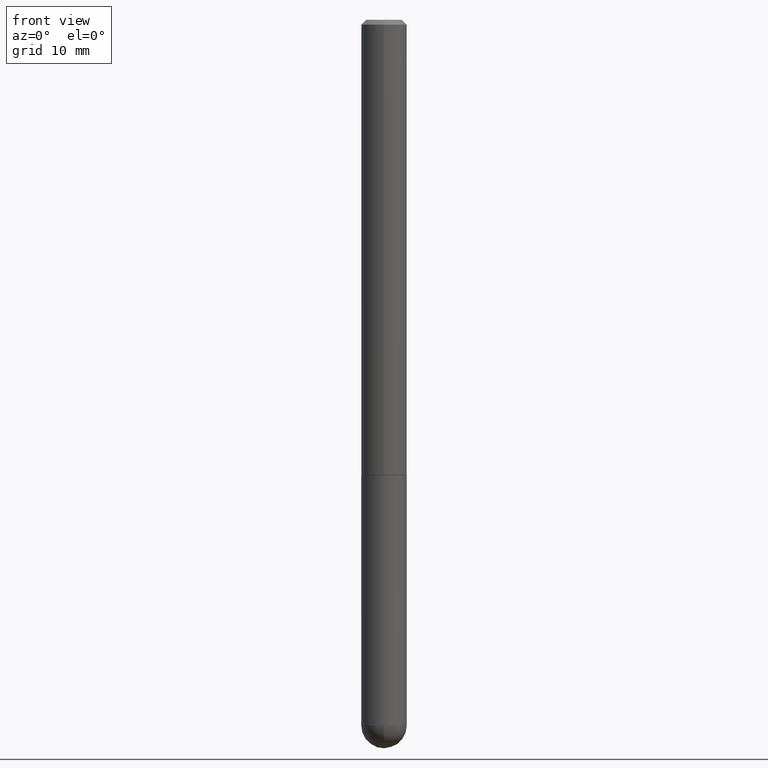
[diagram: clean part render]
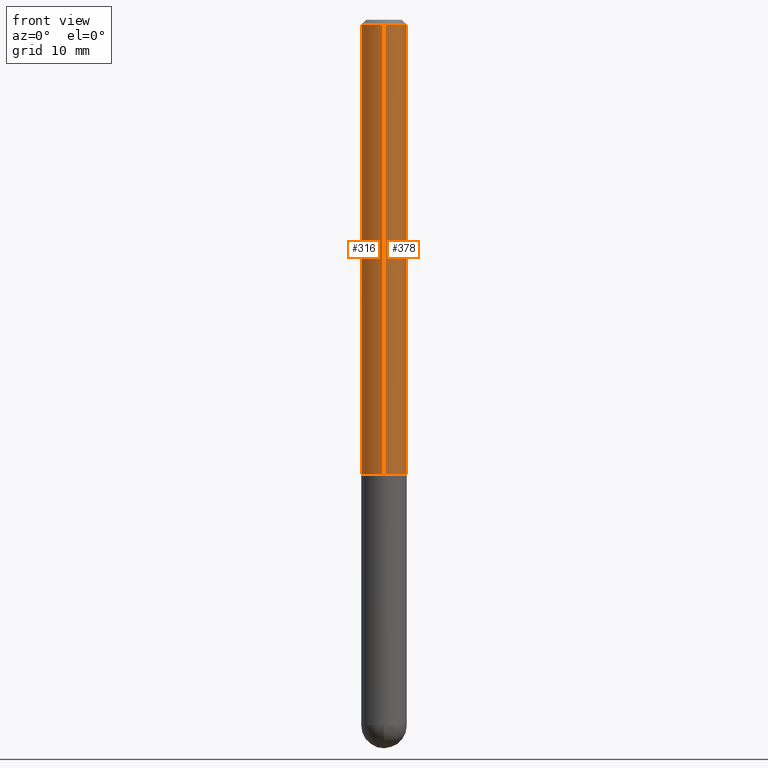
[diagram: same view with one multi-face feature highlighted, each face labeled with its STEP entity id]
A machine part, front view. The highlighted faces form ONE feature: a constant-radius fillet chain: 2 tangent blend faces with common blend radius 2.3813 mm. The faces share edges in the B-rep.
Their STEP definitions:
[1] entity #316 (Cylinder):
#18 = CIRCLE ( 'NONE', #53, 0.09375000000000024980 ) ;
#38 = AXIS2_PLACEMENT_3D ( 'NONE', #71, #390, #43 ) ;
#39 = CARTESIAN_POINT ( 'NONE',  ( 4.581812721801287478E-29, -6.544462101327855902E-15, -1.874000000000000110 ) ) ;
#43 = DIRECTION ( 'NONE',  ( -6.982962677686266711E-15, -1.000000000000000000, 3.505871591869136121E-15 ) ) ;
#49 = DIRECTION ( 'NONE',  ( -2.444937418250420594E-29, 3.492242316610381935E-15, 1.000000000000000000 ) ) ;
#50 = CARTESIAN_POINT ( 'NONE',  ( 6.661338147750948117E-16, 0.09375000000000013878, -3.273977171822237748E-16 ) ) ;
#51 = VECTOR ( 'NONE', #49, 39.37007874015748143 ) ;
#53 = AXIS2_PLACEMENT_3D ( 'NONE', #39, #325, #228 ) ;
#71 = CARTESIAN_POINT ( 'NONE',  ( 4.889874836500844937E-31, -6.984484633220769491E-17, -0.02000000000000001776 ) ) ;
#78 = CARTESIAN_POINT ( 'NONE',  ( 0.000000000000000000, 0.000000000000000000, 0.000000000000000000 ) ) ;
#96 = DIRECTION ( 'NONE',  ( -2.444937418250420594E-29, 3.492242316610381935E-15, 1.000000000000000000 ) ) ;
#111 = EDGE_CURVE ( 'NONE', #259, #388, #113, .T. ) ;
#113 = LINE ( 'NONE', #50, #51 ) ;
#119 = AXIS2_PLACEMENT_3D ( 'NONE', #78, #96, #358 ) ;
#128 = VECTOR ( 'NONE', #361, 39.37007874015748143 ) ;
#133 = CARTESIAN_POINT ( 'NONE',  ( 6.546527510330881944E-16, 0.09374999999999997224, -0.02000000000000034736 ) ) ;
#158 = CARTESIAN_POINT ( 'NONE',  ( 6.661338147751182803E-16, 0.09374999999999368561, -1.874000000000000332 ) ) ;
#167 = EDGE_LOOP ( 'NONE', ( #169, #394, #227, #260 ) ) ;
#169 = ORIENTED_EDGE ( 'NONE', *, *, #111, .F. ) ;
#192 = CYLINDRICAL_SURFACE ( 'NONE', #119, 0.09375000000000013878 ) ;
#227 = ORIENTED_EDGE ( 'NONE', *, *, #404, .T. ) ;
#228 = DIRECTION ( 'NONE',  ( -6.982962677686265133E-15, -1.000000000000000000, 2.913971193241872878E-15 ) ) ;
#235 = CARTESIAN_POINT ( 'NONE',  ( -6.431716872910807882E-16, -0.09375000000000011102, -0.01999999999999968817 ) ) ;
#239 = VERTEX_POINT ( 'NONE', #317 ) ;
#256 = CIRCLE ( 'NONE', #38, 0.09375000000000004163 ) ;
#257 = CARTESIAN_POINT ( 'NONE',  ( -6.546527510330884902E-16, -0.09375000000000013878, 3.273977171822237748E-16 ) ) ;
#259 = VERTEX_POINT ( 'NONE', #158 ) ;
#260 = ORIENTED_EDGE ( 'NONE', *, *, #320, .F. ) ;
#271 = VERTEX_POINT ( 'NONE', #235 ) ;
#312 = EDGE_CURVE ( 'NONE', #259, #239, #18, .T. ) ;
#316 = ADVANCED_FACE ( 'NONE', ( #355 ), #192, .T. ) ;
#317 = CARTESIAN_POINT ( 'NONE',  ( -6.546527510330432293E-16, -0.09375000000000678624, -1.873999999999999666 ) ) ;
#320 = EDGE_CURVE ( 'NONE', #388, #271, #256, .T. ) ;
#323 = LINE ( 'NONE', #257, #128 ) ;
#325 = DIRECTION ( 'NONE',  ( -2.444937418250420594E-29, 3.492242316610381935E-15, 1.000000000000000000 ) ) ;
#355 = FACE_OUTER_BOUND ( 'NONE', #167, .T. ) ;
#358 = DIRECTION ( 'NONE',  ( -6.982962677686266711E-15, -1.000000000000000000, 3.492242316610381935E-15 ) ) ;
#361 = DIRECTION ( 'NONE',  ( -2.444937418250420594E-29, 3.492242316610381935E-15, 1.000000000000000000 ) ) ;
#388 = VERTEX_POINT ( 'NONE', #133 ) ;
#390 = DIRECTION ( 'NONE',  ( -2.444937418250420594E-29, 3.492242316610381935E-15, 1.000000000000000000 ) ) ;
#394 = ORIENTED_EDGE ( 'NONE', *, *, #312, .T. ) ;
#404 = EDGE_CURVE ( 'NONE', #239, #271, #323, .T. ) ;
[2] entity #378 (Cylinder):
#4 = EDGE_LOOP ( 'NONE', ( #359, #80, #20, #229 ) ) ;
#20 = ORIENTED_EDGE ( 'NONE', *, *, #194, .F. ) ;
#34 = DIRECTION ( 'NONE',  ( -6.982962677686266711E-15, -1.000000000000000000, 3.492242316610381935E-15 ) ) ;
#49 = DIRECTION ( 'NONE',  ( -2.444937418250420594E-29, 3.492242316610381935E-15, 1.000000000000000000 ) ) ;
#50 = CARTESIAN_POINT ( 'NONE',  ( 6.661338147750948117E-16, 0.09375000000000013878, -3.273977171822237748E-16 ) ) ;
#51 = VECTOR ( 'NONE', #49, 39.37007874015748143 ) ;
#56 = DIRECTION ( 'NONE',  ( -2.444937418250420594E-29, 3.492242316610381935E-15, 1.000000000000000000 ) ) ;
#74 = EDGE_CURVE ( 'NONE', #239, #259, #270, .T. ) ;
#80 = ORIENTED_EDGE ( 'NONE', *, *, #111, .T. ) ;
#81 = AXIS2_PLACEMENT_3D ( 'NONE', #245, #56, #370 ) ;
#109 = CYLINDRICAL_SURFACE ( 'NONE', #334, 0.09375000000000013878 ) ;
#111 = EDGE_CURVE ( 'NONE', #259, #388, #113, .T. ) ;
#113 = LINE ( 'NONE', #50, #51 ) ;
#118 = CIRCLE ( 'NONE', #173, 0.09375000000000004163 ) ;
#128 = VECTOR ( 'NONE', #361, 39.37007874015748143 ) ;
#133 = CARTESIAN_POINT ( 'NONE',  ( 6.546527510330881944E-16, 0.09374999999999997224, -0.02000000000000034736 ) ) ;
#137 = DIRECTION ( 'NONE',  ( -2.444937418250420594E-29, 3.492242316610381935E-15, 1.000000000000000000 ) ) ;
#158 = CARTESIAN_POINT ( 'NONE',  ( 6.661338147751182803E-16, 0.09374999999999368561, -1.874000000000000332 ) ) ;
#173 = AXIS2_PLACEMENT_3D ( 'NONE', #223, #191, #311 ) ;
#191 = DIRECTION ( 'NONE',  ( -2.444937418250420594E-29, 3.492242316610381935E-15, 1.000000000000000000 ) ) ;
#194 = EDGE_CURVE ( 'NONE', #271, #388, #118, .T. ) ;
#201 = FACE_OUTER_BOUND ( 'NONE', #4, .T. ) ;
#223 = CARTESIAN_POINT ( 'NONE',  ( 4.889874836500844937E-31, -6.984484633220769491E-17, -0.02000000000000001776 ) ) ;
#229 = ORIENTED_EDGE ( 'NONE', *, *, #404, .F. ) ;
#235 = CARTESIAN_POINT ( 'NONE',  ( -6.431716872910807882E-16, -0.09375000000000011102, -0.01999999999999968817 ) ) ;
#237 = CARTESIAN_POINT ( 'NONE',  ( 0.000000000000000000, 0.000000000000000000, 0.000000000000000000 ) ) ;
#239 = VERTEX_POINT ( 'NONE', #317 ) ;
#245 = CARTESIAN_POINT ( 'NONE',  ( 4.581812721801287478E-29, -6.544462101327855902E-15, -1.874000000000000110 ) ) ;
#257 = CARTESIAN_POINT ( 'NONE',  ( -6.546527510330884902E-16, -0.09375000000000013878, 3.273977171822237748E-16 ) ) ;
#259 = VERTEX_POINT ( 'NONE', #158 ) ;
#270 = CIRCLE ( 'NONE', #81, 0.09375000000000024980 ) ;
#271 = VERTEX_POINT ( 'NONE', #235 ) ;
#311 = DIRECTION ( 'NONE',  ( -6.982962677686266711E-15, -1.000000000000000000, 3.505871591869136121E-15 ) ) ;
#317 = CARTESIAN_POINT ( 'NONE',  ( -6.546527510330432293E-16, -0.09375000000000678624, -1.873999999999999666 ) ) ;
#323 = LINE ( 'NONE', #257, #128 ) ;
#334 = AXIS2_PLACEMENT_3D ( 'NONE', #237, #137, #34 ) ;
#359 = ORIENTED_EDGE ( 'NONE', *, *, #74, .T. ) ;
#361 = DIRECTION ( 'NONE',  ( -2.444937418250420594E-29, 3.492242316610381935E-15, 1.000000000000000000 ) ) ;
#370 = DIRECTION ( 'NONE',  ( -6.982962677686265133E-15, -1.000000000000000000, 2.913971193241872878E-15 ) ) ;
#378 = ADVANCED_FACE ( 'NONE', ( #201 ), #109, .T. ) ;
#388 = VERTEX_POINT ( 'NONE', #133 ) ;
#404 = EDGE_CURVE ( 'NONE', #239, #271, #323, .T. ) ;